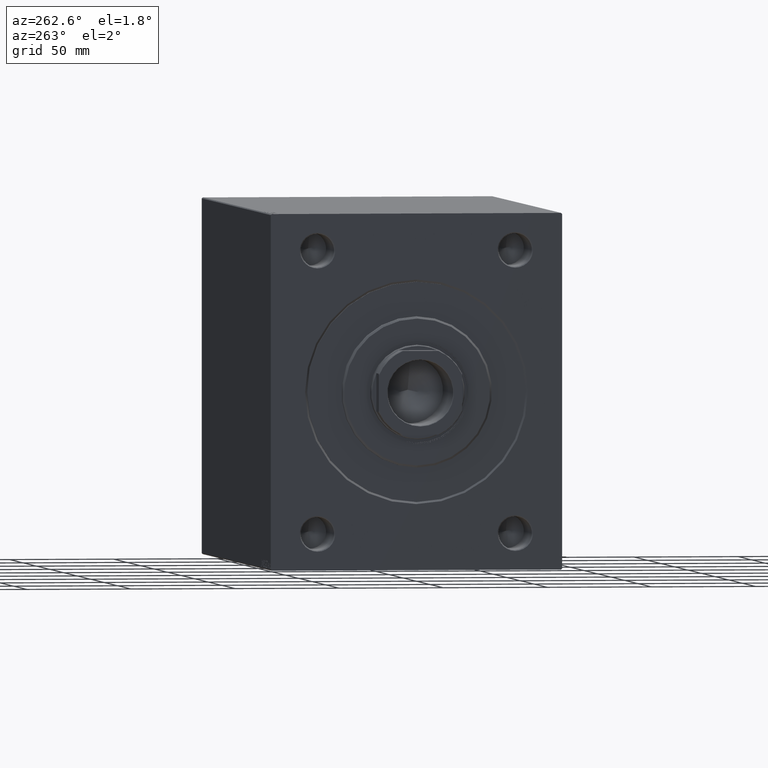
[diagram: clean part render]
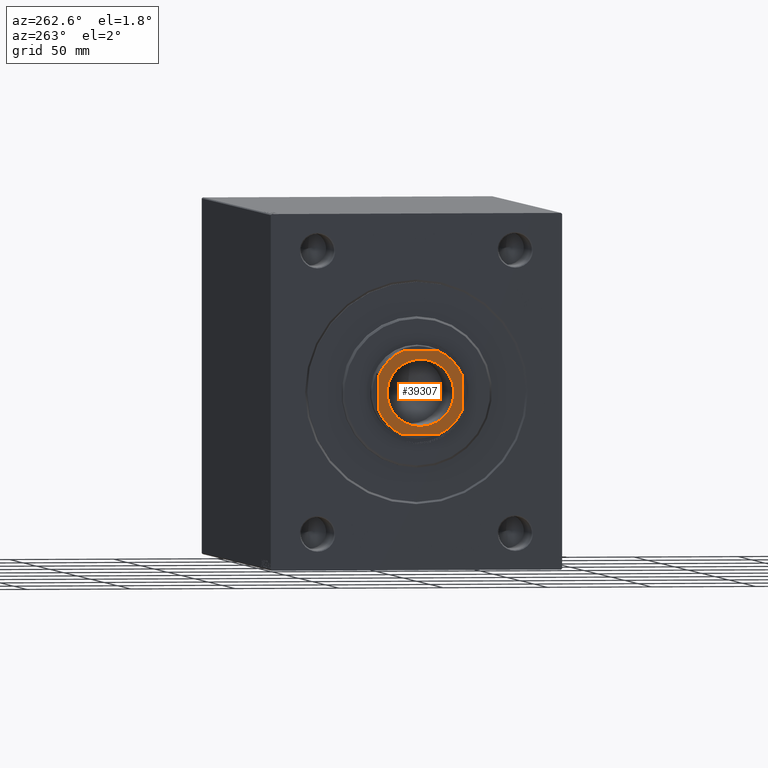
[diagram: same view with one face highlighted and labeled with its STEP entity id]
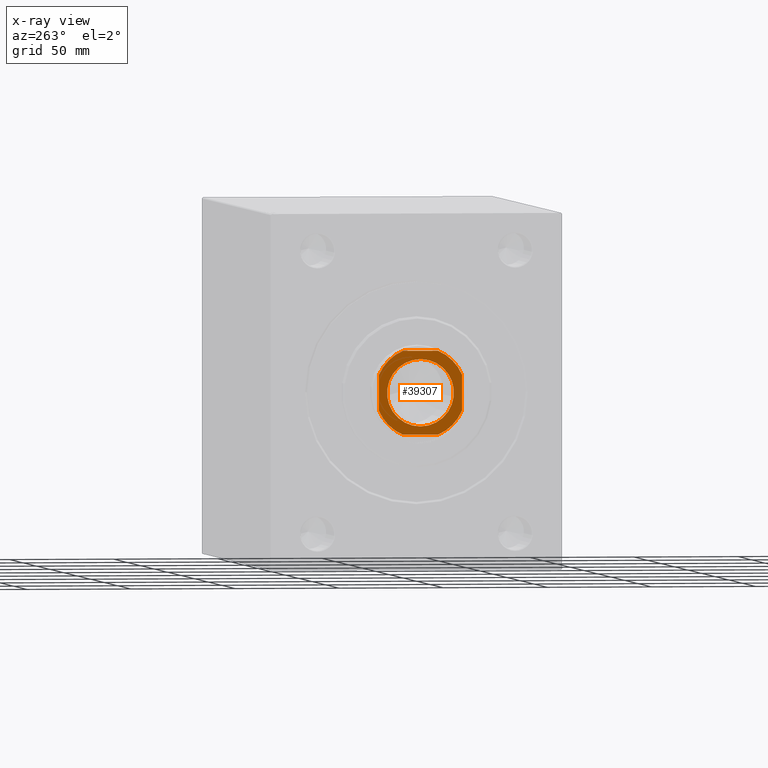
[diagram: x-ray of the same camera — body ghosted, the highlighted face saturated]
A machine part, auxiliary view. The second image highlights one B-rep face of the part: STEP entity #39307.
The next image is the same camera in x-ray: the body ghosted, the highlighted face saturated — about 0% of this face is hidden behind the body in this view.
In plain terms, the highlighted planar face has unit normal (-1, 0, 0).
Its self-contained STEP definition (entity closure, byte-faithful):
#773 = CARTESIAN_POINT ( 'NONE',  ( 0.000000000000000000, 0.000000000000000000, 244.0000000000000284 ) ) ;
#960 = VERTEX_POINT ( 'NONE', #30679 ) ;
#1275 = DIRECTION ( 'NONE',  ( -0.000000000000000000, 0.000000000000000000, 1.000000000000000000 ) ) ;
#2106 = VECTOR ( 'NONE', #20566, 1000.000000000000000 ) ;
#2979 = CARTESIAN_POINT ( 'NONE',  ( 20.00000000000000000, -8.419619943916611504, 244.0000000000000284 ) ) ;
#3387 = EDGE_LOOP ( 'NONE', ( #12661, #9620 ) ) ;
#3649 = VECTOR ( 'NONE', #6486, 1000.000000000000000 ) ;
#4424 = VERTEX_POINT ( 'NONE', #18225 ) ;
#4468 = EDGE_LOOP ( 'NONE', ( #40883, #26288, #32651, #17228, #29957, #6162, #12626, #23728 ) ) ;
#4623 = EDGE_CURVE ( 'NONE', #18794, #4424, #24150, .T. ) ;
#5474 = CARTESIAN_POINT ( 'NONE',  ( 19.99999999999999289, 8.419619943916616833, 244.0000000000000284 ) ) ;
#5869 = CARTESIAN_POINT ( 'NONE',  ( 16.05000000000003624, 0.000000000000000000, 244.0000000000000284 ) ) ;
#5900 = CIRCLE ( 'NONE', #14513, 21.69999999999999574 ) ;
#6162 = ORIENTED_EDGE ( 'NONE', *, *, #20636, .T. ) ;
#6486 = DIRECTION ( 'NONE',  ( -1.000000000000000000, -8.673617379884035472E-17, -0.000000000000000000 ) ) ;
#6538 = DIRECTION ( 'NONE',  ( 1.000000000000000000, 0.000000000000000000, 0.000000000000000000 ) ) ;
#8066 = EDGE_CURVE ( 'NONE', #35143, #22033, #17691, .T. ) ;
#8360 = EDGE_CURVE ( 'NONE', #960, #22960, #20306, .T. ) ;
#8469 = CARTESIAN_POINT ( 'NONE',  ( 0.000000000000000000, 0.000000000000000000, 244.0000000000000284 ) ) ;
#8760 = DIRECTION ( 'NONE',  ( -0.000000000000000000, 0.000000000000000000, 1.000000000000000000 ) ) ;
#9620 = ORIENTED_EDGE ( 'NONE', *, *, #14642, .T. ) ;
#9898 = DIRECTION ( 'NONE',  ( -0.000000000000000000, 0.000000000000000000, 1.000000000000000000 ) ) ;
#10662 = DIRECTION ( 'NONE',  ( 0.000000000000000000, -0.000000000000000000, -1.000000000000000000 ) ) ;
#11152 = VERTEX_POINT ( 'NONE', #30013 ) ;
#11467 = CIRCLE ( 'NONE', #29441, 16.05000000000003624 ) ;
#11681 = FACE_BOUND ( 'NONE', #3387, .T. ) ;
#11723 = DIRECTION ( 'NONE',  ( -0.000000000000000000, 0.000000000000000000, 1.000000000000000000 ) ) ;
#11801 = EDGE_CURVE ( 'NONE', #22960, #35143, #27156, .T. ) ;
#11894 = CARTESIAN_POINT ( 'NONE',  ( 0.000000000000000000, 0.000000000000000000, 244.0000000000000284 ) ) ;
#12391 = DIRECTION ( 'NONE',  ( 1.000000000000000000, 0.000000000000000000, 0.000000000000000000 ) ) ;
#12626 = ORIENTED_EDGE ( 'NONE', *, *, #8360, .T. ) ;
#12661 = ORIENTED_EDGE ( 'NONE', *, *, #4623, .T. ) ;
#13371 = CARTESIAN_POINT ( 'NONE',  ( -20.00000000000000711, 19.99999999999998934, 244.0000000000000284 ) ) ;
#14479 = EDGE_CURVE ( 'NONE', #39336, #32621, #40578, .T. ) ;
#14513 = AXIS2_PLACEMENT_3D ( 'NONE', #43200, #11723, #12391 ) ;
#14642 = EDGE_CURVE ( 'NONE', #4424, #18794, #11467, .T. ) ;
#15248 = VERTEX_POINT ( 'NONE', #19541 ) ;
#17022 = LINE ( 'NONE', #44469, #3649 ) ;
#17228 = ORIENTED_EDGE ( 'NONE', *, *, #43021, .T. ) ;
#17691 = LINE ( 'NONE', #24014, #35728 ) ;
#18225 = CARTESIAN_POINT ( 'NONE',  ( -16.05000000000003624, 1.965558112631506149E-15, 244.0000000000000284 ) ) ;
#18794 = VERTEX_POINT ( 'NONE', #5869 ) ;
#18898 = DIRECTION ( 'NONE',  ( 1.000000000000000000, 0.000000000000000000, 0.000000000000000000 ) ) ;
#19344 = DIRECTION ( 'NONE',  ( -0.000000000000000000, 0.000000000000000000, 1.000000000000000000 ) ) ;
#19541 = CARTESIAN_POINT ( 'NONE',  ( 8.419619943916625715, 19.99999999999999289, 244.0000000000000284 ) ) ;
#20306 = LINE ( 'NONE', #34000, #31417 ) ;
#20566 = DIRECTION ( 'NONE',  ( 2.602085213965210642E-16, -1.000000000000000000, 0.000000000000000000 ) ) ;
#20636 = EDGE_CURVE ( 'NONE', #32621, #960, #43858, .T. ) ;
#20869 = AXIS2_PLACEMENT_3D ( 'NONE', #30569, #9898, #6538 ) ;
#20905 = AXIS2_PLACEMENT_3D ( 'NONE', #11894, #8760, #35509 ) ;
#21495 = CARTESIAN_POINT ( 'NONE',  ( 0.000000000000000000, 0.000000000000000000, 244.0000000000000284 ) ) ;
#22010 = AXIS2_PLACEMENT_3D ( 'NONE', #21495, #38124, #31376 ) ;
#22029 = CARTESIAN_POINT ( 'NONE',  ( -20.00000000000000355, 8.419619943916682558, 244.0000000000000284 ) ) ;
#22033 = VERTEX_POINT ( 'NONE', #5474 ) ;
#22960 = VERTEX_POINT ( 'NONE', #34193 ) ;
#23728 = ORIENTED_EDGE ( 'NONE', *, *, #11801, .T. ) ;
#24014 = CARTESIAN_POINT ( 'NONE',  ( 19.99999999999999289, 19.99999999999999289, 244.0000000000000284 ) ) ;
#24150 = CIRCLE ( 'NONE', #22010, 16.05000000000003624 ) ;
#26063 = EDGE_CURVE ( 'NONE', #22033, #15248, #30330, .T. ) ;
#26288 = ORIENTED_EDGE ( 'NONE', *, *, #26063, .T. ) ;
#27156 = CIRCLE ( 'NONE', #39379, 21.69999999999996021 ) ;
#29441 = AXIS2_PLACEMENT_3D ( 'NONE', #773, #10662, #31559 ) ;
#29957 = ORIENTED_EDGE ( 'NONE', *, *, #14479, .T. ) ;
#30013 = CARTESIAN_POINT ( 'NONE',  ( -8.419619943916716309, 19.99999999999999289, 244.0000000000000284 ) ) ;
#30330 = CIRCLE ( 'NONE', #36787, 21.69999999999996021 ) ;
#30569 = CARTESIAN_POINT ( 'NONE',  ( 0.000000000000000000, 0.000000000000000000, 244.0000000000000284 ) ) ;
#30679 = CARTESIAN_POINT ( 'NONE',  ( -8.419619943916673677, -20.00000000000001066, 244.0000000000000284 ) ) ;
#31376 = DIRECTION ( 'NONE',  ( 1.000000000000000000, 0.000000000000000000, 0.000000000000000000 ) ) ;
#31417 = VECTOR ( 'NONE', #42041, 1000.000000000000000 ) ;
#31559 = DIRECTION ( 'NONE',  ( 1.000000000000000000, 0.000000000000000000, 0.000000000000000000 ) ) ;
#31627 = DIRECTION ( 'NONE',  ( -2.602085213965210149E-16, 1.000000000000000000, -0.000000000000000000 ) ) ;
#31847 = DIRECTION ( 'NONE',  ( 1.000000000000000000, 0.000000000000000000, 0.000000000000000000 ) ) ;
#32621 = VERTEX_POINT ( 'NONE', #35742 ) ;
#32651 = ORIENTED_EDGE ( 'NONE', *, *, #38529, .T. ) ;
#34000 = CARTESIAN_POINT ( 'NONE',  ( -19.99999999999999645, -20.00000000000001066, 244.0000000000000284 ) ) ;
#34193 = CARTESIAN_POINT ( 'NONE',  ( 8.419619943916575977, -20.00000000000001066, 244.0000000000000284 ) ) ;
#35143 = VERTEX_POINT ( 'NONE', #2979 ) ;
#35509 = DIRECTION ( 'NONE',  ( 1.000000000000000000, 0.000000000000000000, 0.000000000000000000 ) ) ;
#35728 = VECTOR ( 'NONE', #31627, 1000.000000000000000 ) ;
#35742 = CARTESIAN_POINT ( 'NONE',  ( -20.00000000000000000, -8.419619943916694993, 244.0000000000000284 ) ) ;
#35761 = CARTESIAN_POINT ( 'NONE',  ( 0.000000000000000000, 0.000000000000000000, 244.0000000000000284 ) ) ;
#35953 = PLANE ( 'NONE',  #20905 ) ;
#36787 = AXIS2_PLACEMENT_3D ( 'NONE', #35761, #19344, #18898 ) ;
#38124 = DIRECTION ( 'NONE',  ( 0.000000000000000000, -0.000000000000000000, -1.000000000000000000 ) ) ;
#38529 = EDGE_CURVE ( 'NONE', #15248, #11152, #17022, .T. ) ;
#39307 = ADVANCED_FACE ( 'NONE', ( #11681, #42484 ), #35953, .T. ) ;
#39336 = VERTEX_POINT ( 'NONE', #22029 ) ;
#39379 = AXIS2_PLACEMENT_3D ( 'NONE', #8469, #1275, #31847 ) ;
#40578 = LINE ( 'NONE', #13371, #2106 ) ;
#40883 = ORIENTED_EDGE ( 'NONE', *, *, #8066, .T. ) ;
#42041 = DIRECTION ( 'NONE',  ( 1.000000000000000000, 0.000000000000000000, 0.000000000000000000 ) ) ;
#42484 = FACE_OUTER_BOUND ( 'NONE', #4468, .T. ) ;
#43021 = EDGE_CURVE ( 'NONE', #11152, #39336, #5900, .T. ) ;
#43200 = CARTESIAN_POINT ( 'NONE',  ( 0.000000000000000000, 0.000000000000000000, 244.0000000000000284 ) ) ;
#43858 = CIRCLE ( 'NONE', #20869, 21.69999999999999574 ) ;
#44469 = CARTESIAN_POINT ( 'NONE',  ( -20.00000000000000711, 19.99999999999998934, 244.0000000000000284 ) ) ;